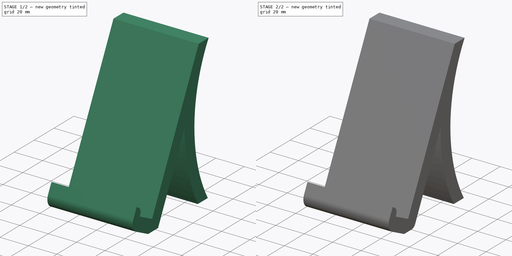
[diagram: build sequence overview — one tinted view per stage of 2, left to right]
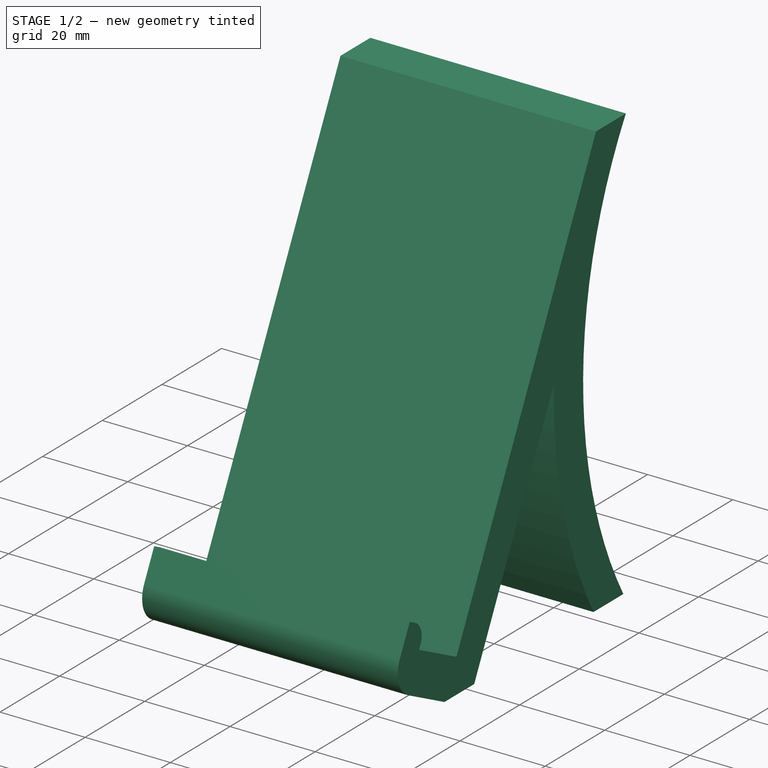
[diagram: stage 1 of 2 — iso view after this stage's code; geometry added in this stage tinted green]
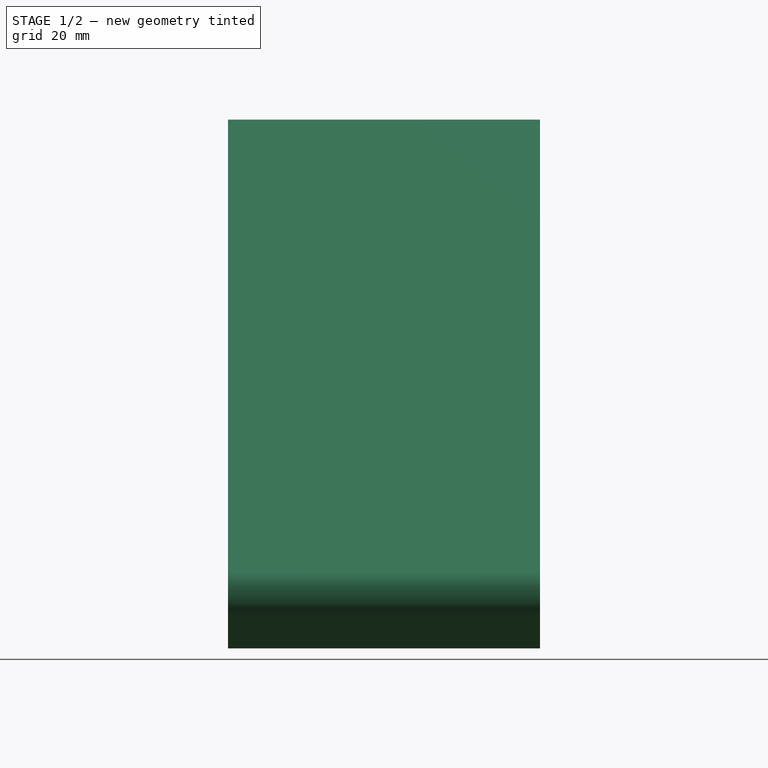
[diagram: stage 1 of 2 — front view after this stage's code; geometry added in this stage tinted green]
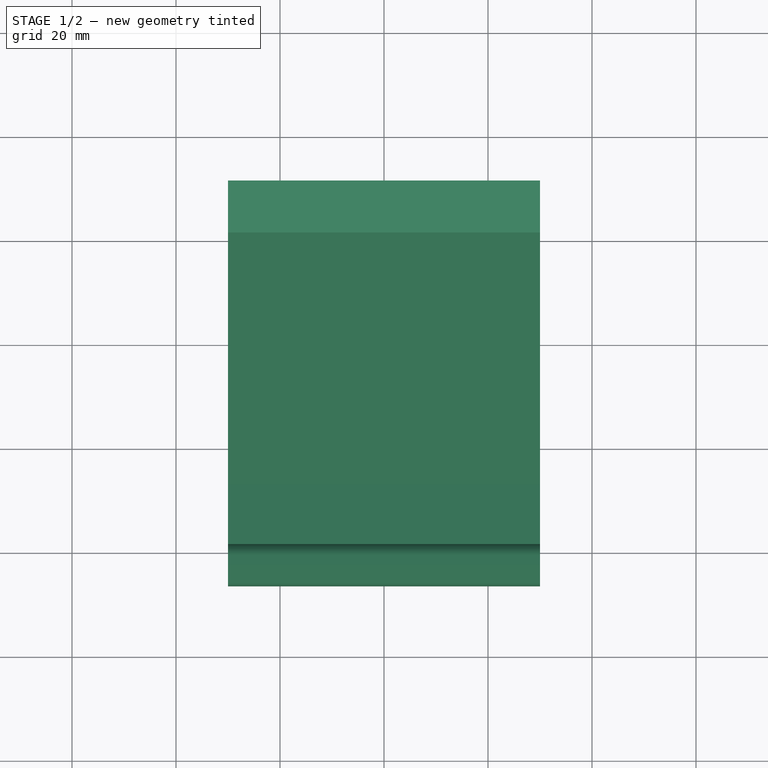
[diagram: stage 1 of 2 — top view after this stage's code; geometry added in this stage tinted green]
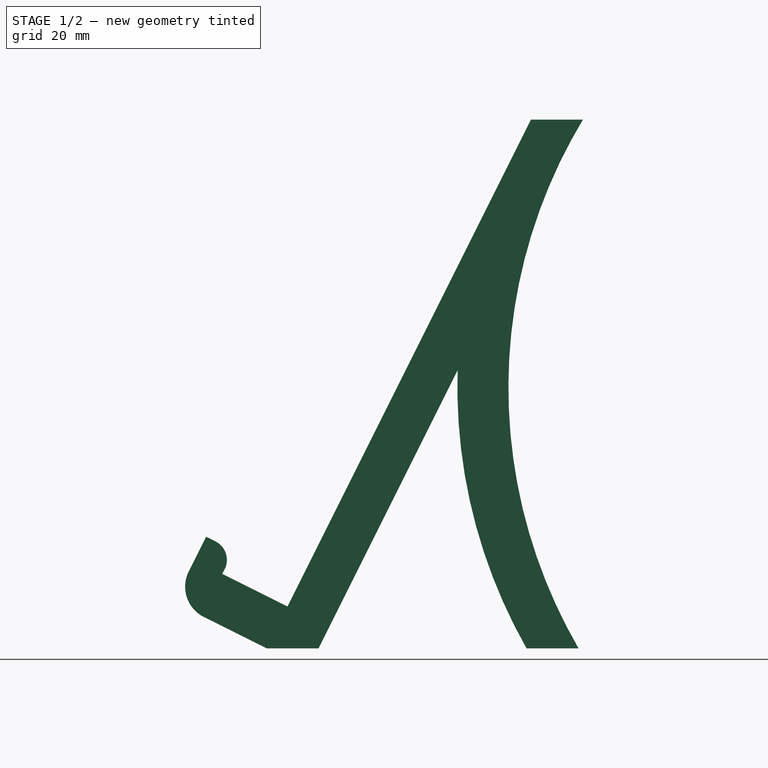
[diagram: stage 1 of 2 — right view after this stage's code; geometry added in this stage tinted green]
FCSTD DOCUMENT
Label: smartphone_stand
objects: PartDesign::Fillet×2, Sketcher::SketchObject×1, PartDesign::Pad×1
note: 5 computed .brp shape members not serialized (recipe doc carries the construction recipe); baked Part::Feature solids carry a one-line shape summary decoded from their .brp

FEATURE [Sketcher::SketchObject] Sketch
  Placement = pos=(0,0,0) rot=(0.57735,0.57735,0.57735;2.0944rad)
  sketch-geometry (17):
    g0: LineSegment StartX=-30.9286 StartY=0 StartZ=0 EndX=-20.9286 EndY=0 EndZ=0
    g1: LineSegment StartX=-20.9286 StartY=0 StartZ=0 EndX=-0.928621 EndY=40 EndZ=0
    g2: LineSegment [constr] StartX=-0.928621 StartY=40 StartZ=0 EndX=19.0714 EndY=6.9282e-06 EndZ=0
    g3: LineSegment StartX=19.0714 StartY=6.9282e-06 StartZ=0 EndX=29.0714 EndY=6.9282e-06 EndZ=0
    g4: LineSegment StartX=-0.928626 StartY=60 StartZ=0 EndX=-26.9037 EndY=8.04985 EndZ=0
    g5: LineSegment [constr] StartX=29.0714 StartY=6.9282e-06 StartZ=0 EndX=-0.928626 EndY=60 EndZ=0
    g6: LineSegment StartX=-0.928621 StartY=40 StartZ=0 EndX=5.8164 EndY=53.4901 EndZ=0
    g7: LineSegment StartX=-0.928626 StartY=60 StartZ=0 EndX=19.9076 EndY=101.673 EndZ=0
    g8: LineSegment StartX=19.9076 StartY=101.673 StartZ=0 EndX=29.9076 EndY=101.673 EndZ=0
    g9: ArcOfCircle CenterX=115.5 CenterY=50.1289 CenterZ=0 NormalX=0 NormalY=0 NormalZ=1 Radius=99.914 StartAngle=2.59956 EndAngle=3.66718
    g10: LineSegment StartX=-30.9286 StartY=0 StartZ=0 EndX=-42.9933 EndY=6.03232 EndZ=0
    g11: LineSegment StartX=-45.9052 StartY=14.7682 StartZ=0 EndX=-42.5562 EndY=21.4662 EndZ=0
    g12: LineSegment StartX=-42.5562 StartY=21.4662 StartZ=0 EndX=-37.1896 EndY=18.783 EndZ=0
    g13: LineSegment StartX=-37.1896 StartY=18.783 StartZ=0 EndX=-39.4257 EndY=14.3108 EndZ=0
    g14: LineSegment StartX=-39.4257 StartY=14.3108 StartZ=0 EndX=-26.9037 EndY=8.04985 EndZ=0
    g15: ArcOfCircle CenterX=107.661 CenterY=50.3401 CenterZ=0 NormalX=0 NormalY=0 NormalZ=1 Radius=101.893 StartAngle=3.11067 EndAngle=3.65833
    g16: ArcOfCircle CenterX=-40.0813 CenterY=11.8562 CenterZ=0 NormalX=0 NormalY=0 NormalZ=1 Radius=6.51131 StartAngle=2.67795 EndAngle=4.24874
  constraints (40):
    c: PointOnObject(g0,g-1)
    c: Horizontal(g0)
    c: Coincident(g0,g1)
    c: Coincident(g1,g2)
    c: Coincident(g2,g3)
    c: Horizontal(g3)
    c: Angle(g1,g2) = 0.927295
    c: Equal(g0,g3)
    c: Angle(g3,g2) = 2.03444
    c: Parallel(g4,g1)
    c: Equal(g1,g2)
    c: DistanceX(g3) = 10
    c: DistanceX(g0,g2) = 40
    c: Parallel(g5,g2)
    c: Coincident(g6,g1)
    c: Coincident(g7,g4)
    c: Tangent(g7,g4)
    c: Tangent(g6,g1)
    c: Coincident(g8,g7)
    c: Horizontal(g8)
    c: Equal(g8,g3)
    c: Coincident(g9,g3)
    c: Coincident(g4,g5)
    c: Coincident(g0,g10)
    c: Coincident(g12,g11)
    c: Coincident(g12,g13)
    c: Coincident(g13,g14)
    c: Perpendicular(g10,g4)
    c: Perpendicular(g11,g10)
    c: Perpendicular(g12,g11)
    c: Perpendicular(g13,g14)
    c: Distance(g13) = 5
    c: Coincident(g5,g3)
    c: Coincident(g15,g2)
    c: Perpendicular(g4,g14)
    c: Coincident(g4,g14)
    c: Distance(g14) = 14
    c: Coincident(g15,g6)
    c: Tangent(g11,g16)
    c: Tangent(g10,g16)
FEATURE [PartDesign::Pad] Pad
  Length = 60
  Length2 = 100
  Midplane = true
  Placement = pos=(0,0,0) rot=(0.57735,0.57735,0.57735;2.0944rad)
  Sketch = -> Sketch
  Type = 0
FEATURE [PartDesign::Fillet] Fillet
  Base = -> Pad [Edge38]
  Placement = pos=(0,0,0) rot=(0.57735,0.57735,0.57735;2.0944rad)
  Radius = 4
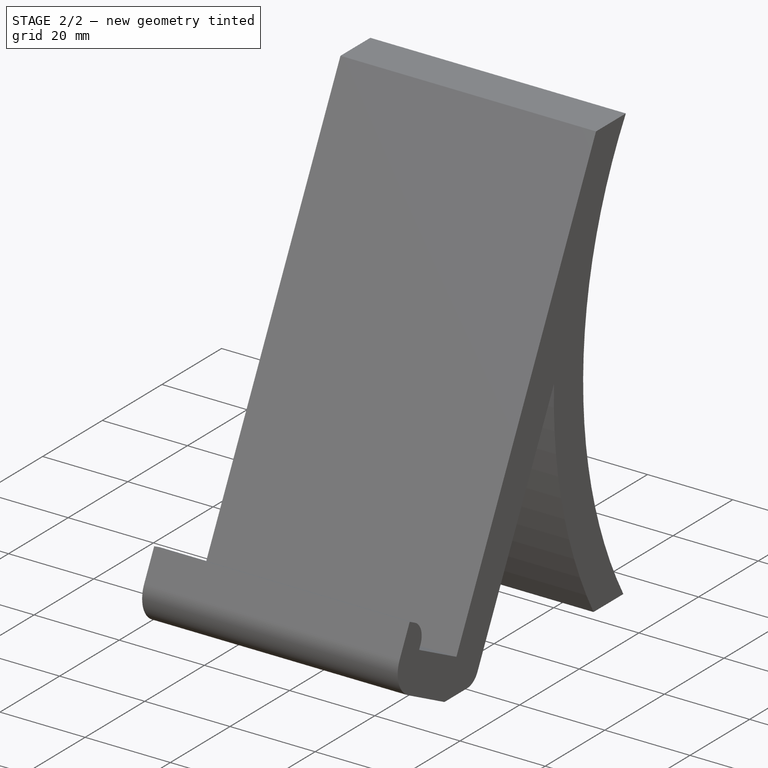
[diagram: stage 2 of 2 — iso view after this stage's code; geometry added in this stage tinted green]
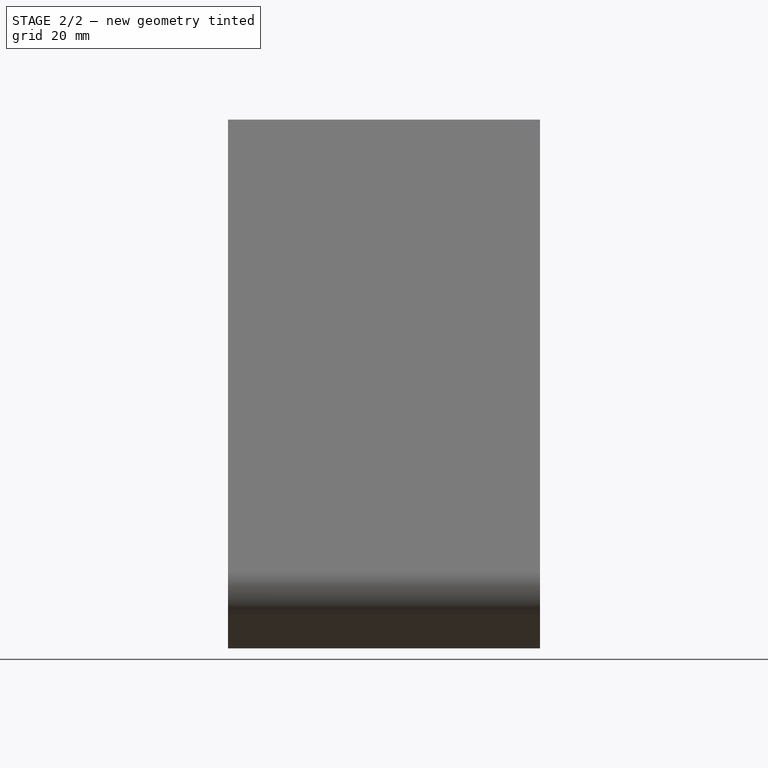
[diagram: stage 2 of 2 — front view after this stage's code; geometry added in this stage tinted green]
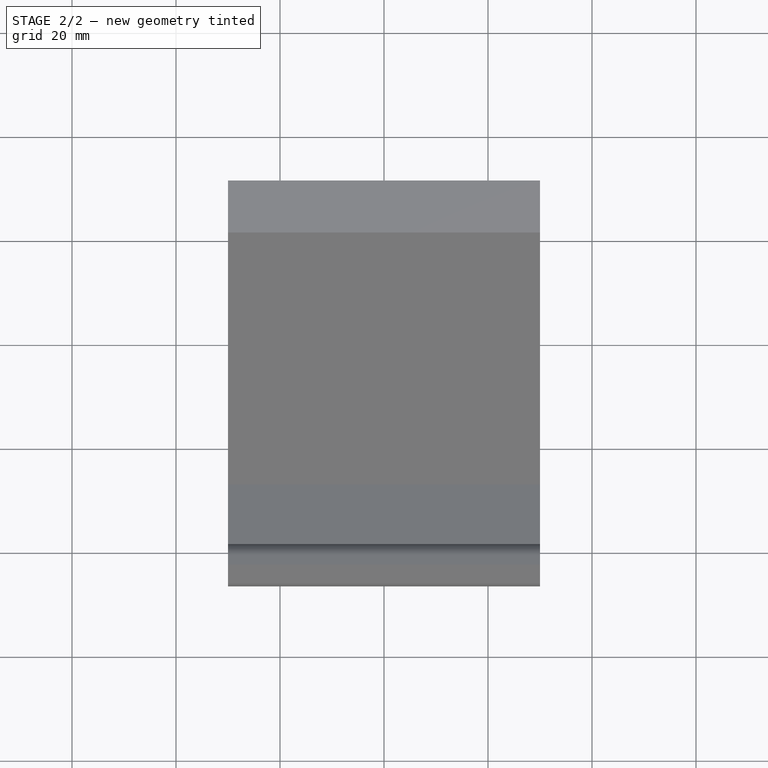
[diagram: stage 2 of 2 — top view after this stage's code; geometry added in this stage tinted green]
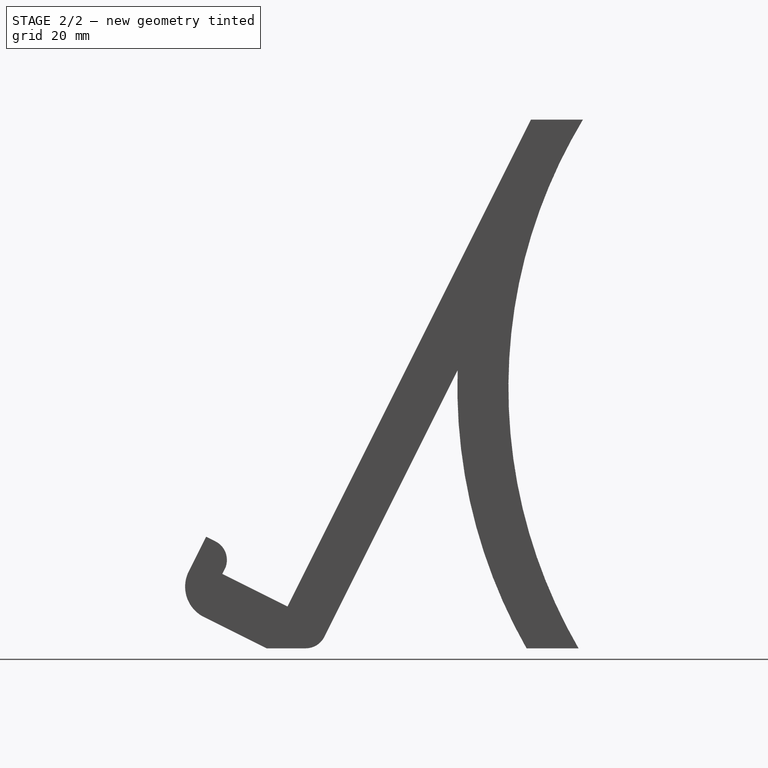
[diagram: stage 2 of 2 — right view after this stage's code; geometry added in this stage tinted green]
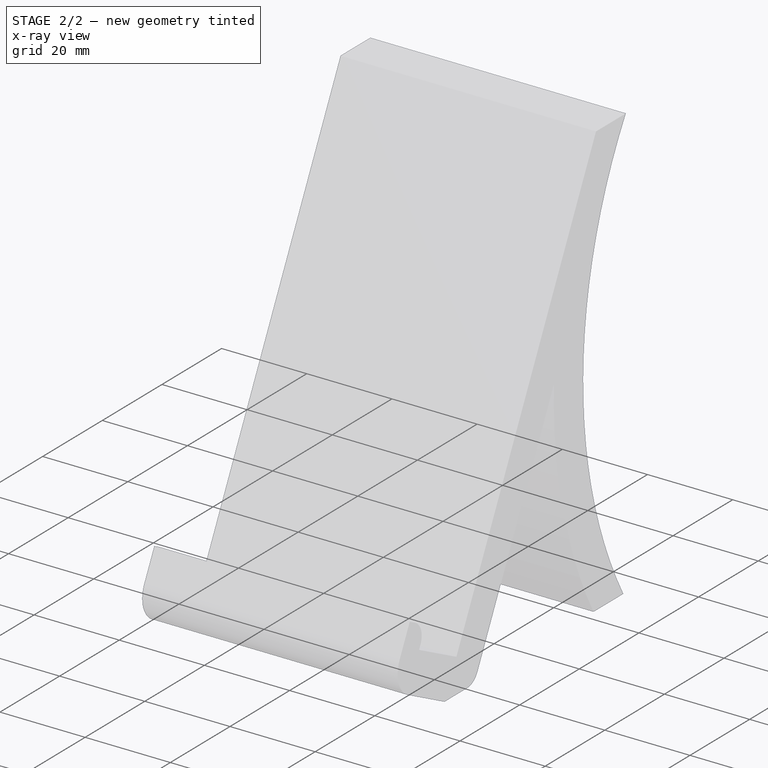
[diagram: stage 2 of 2 — x-ray composite at the iso view; earlier geometry ghosted, this stage's added geometry solid]
FEATURE [PartDesign::Fillet] Fillet001
  Base = -> Fillet [Edge45]
  Placement = pos=(0,0,0) rot=(0.57735,0.57735,0.57735;2.0944rad)
  Radius = 4
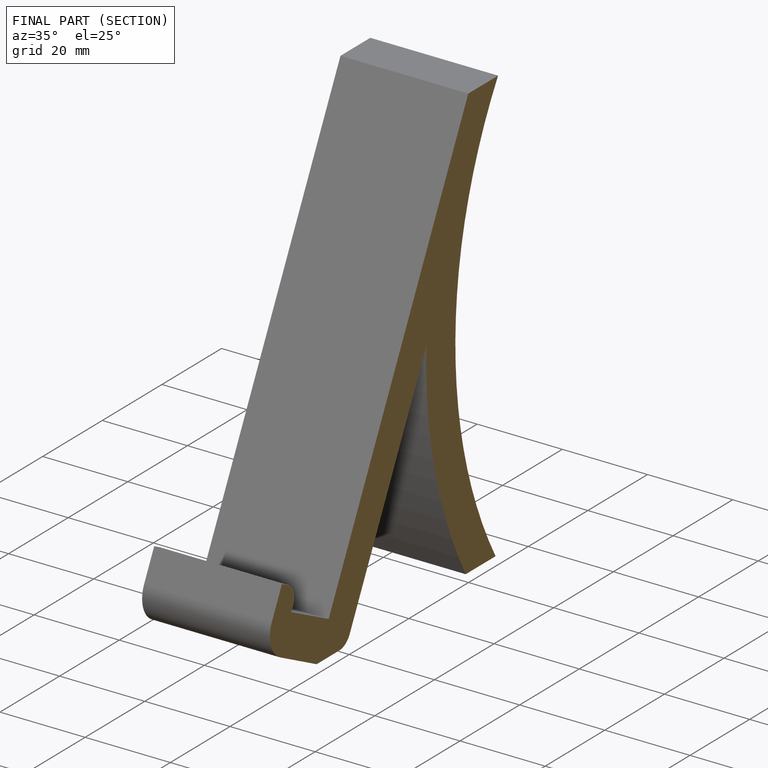
[diagram: finished part — half-section view (interior)]
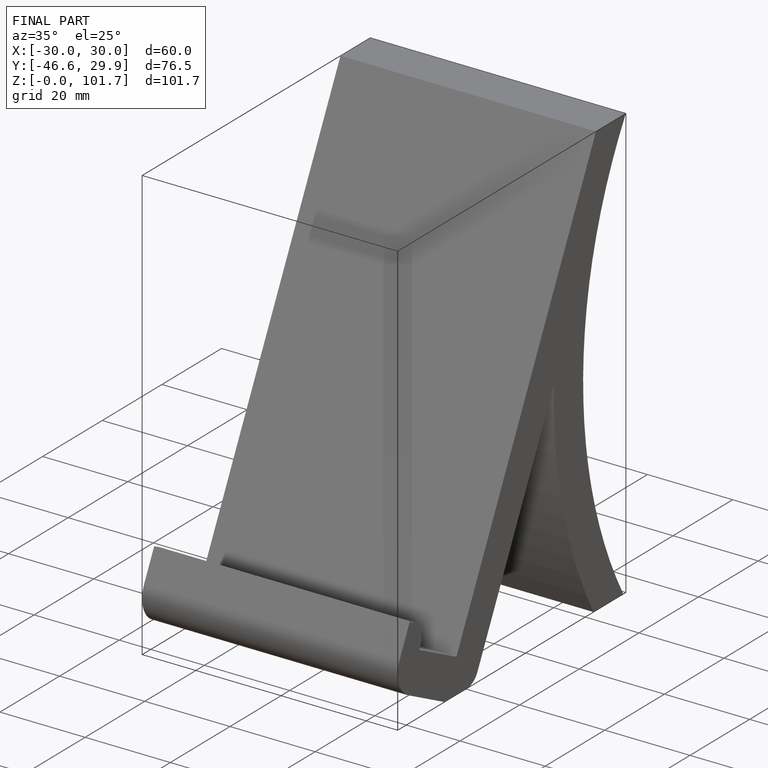
[diagram: finished part — iso view with bounding-box wireframe]
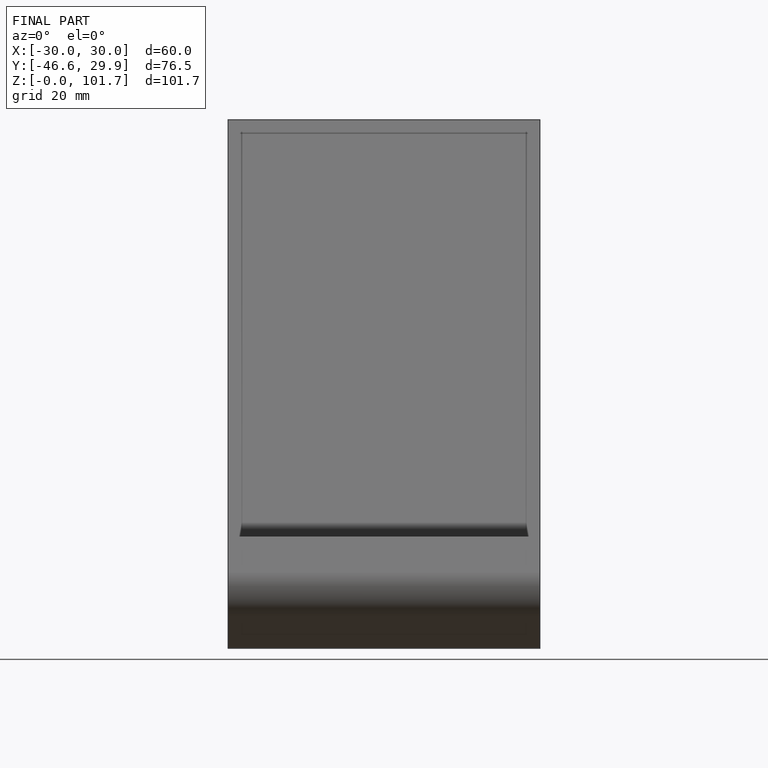
[diagram: finished part — front view with bounding-box wireframe]
